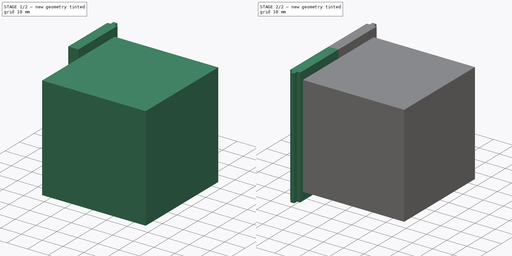
[diagram: build sequence overview — one tinted view per stage of 2, left to right]
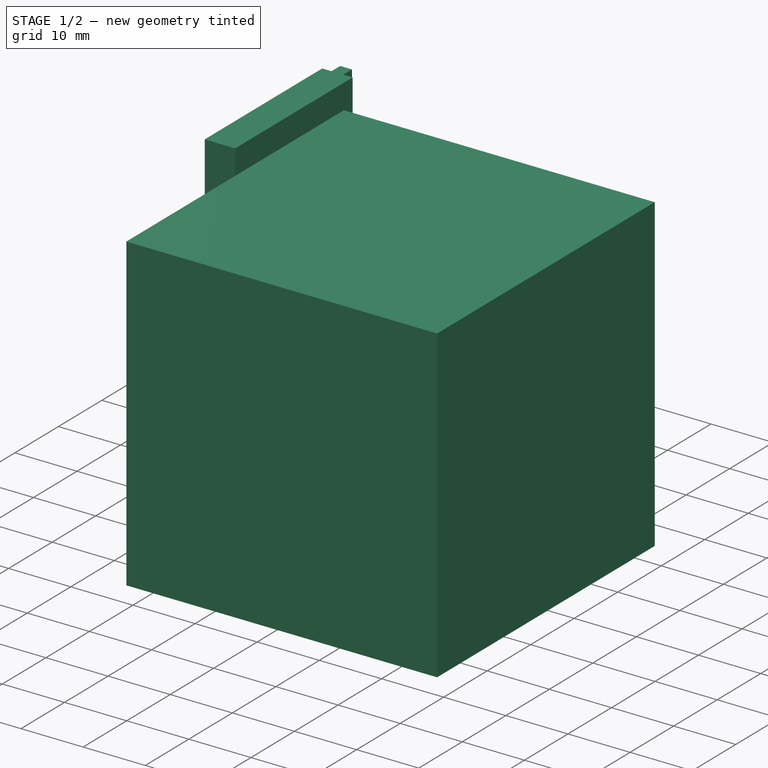
[diagram: stage 1 of 2 — iso view after this stage's code; geometry added in this stage tinted green]
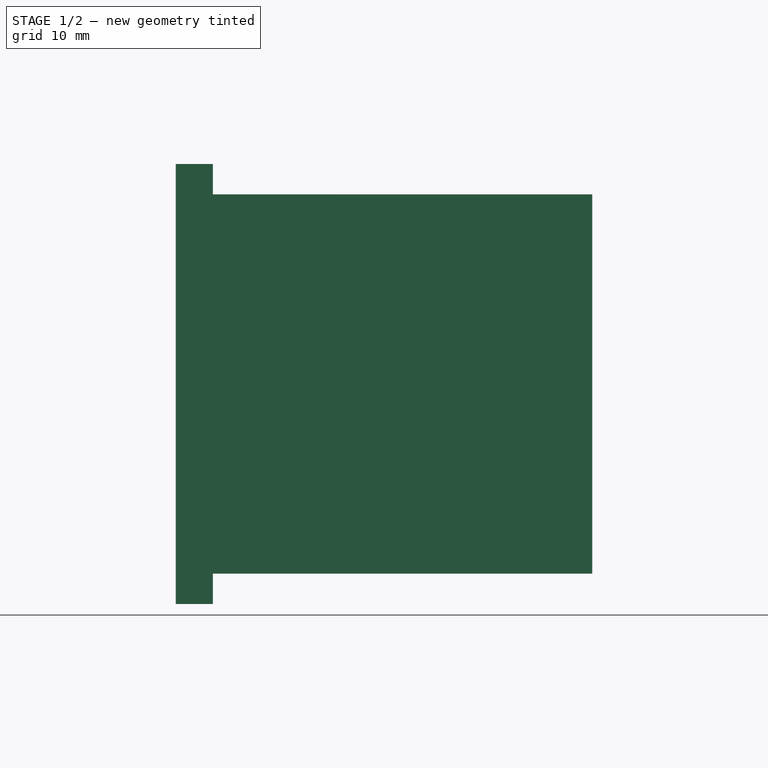
[diagram: stage 1 of 2 — front view after this stage's code; geometry added in this stage tinted green]
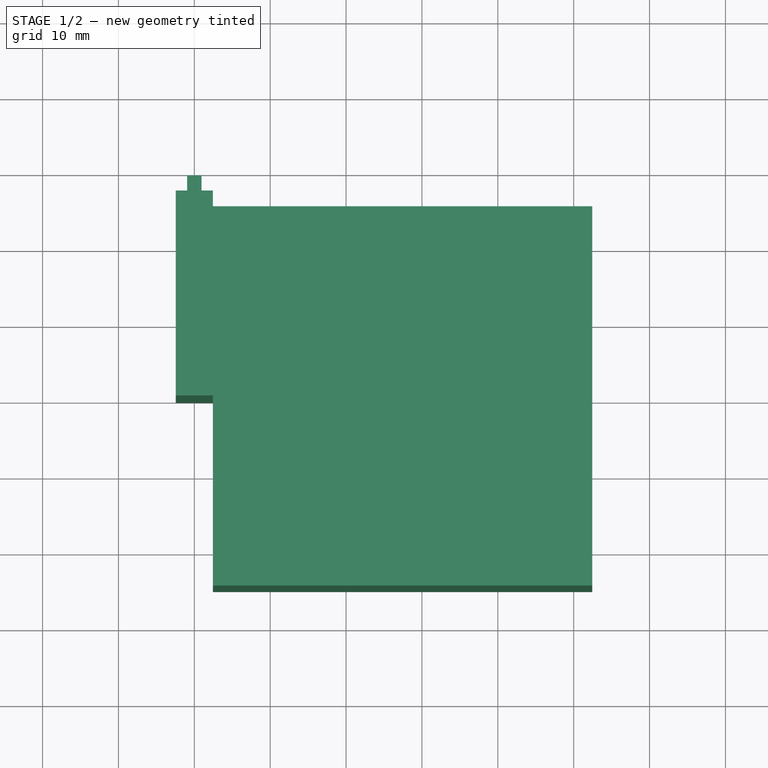
[diagram: stage 1 of 2 — top view after this stage's code; geometry added in this stage tinted green]
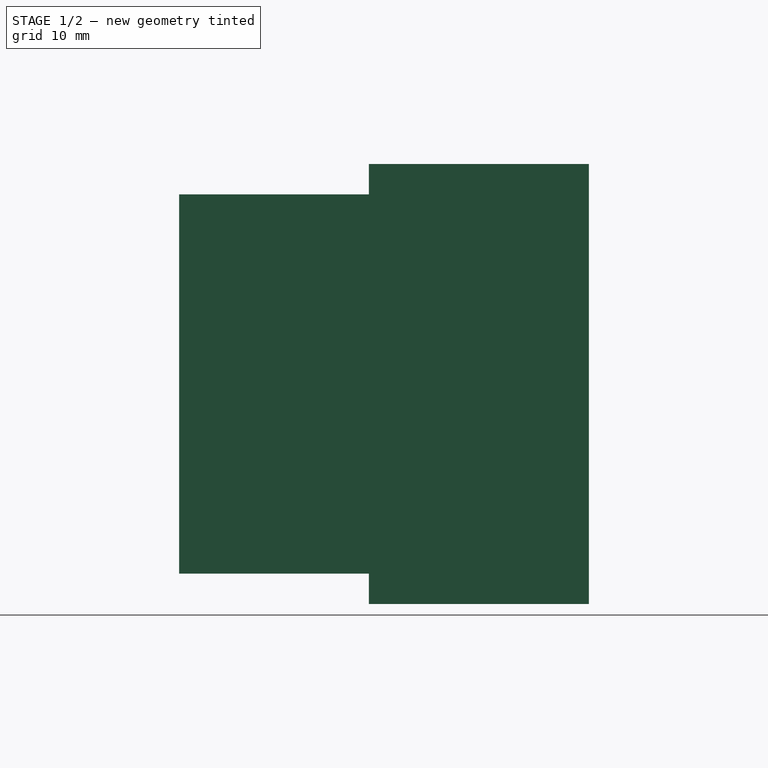
[diagram: stage 1 of 2 — right view after this stage's code; geometry added in this stage tinted green]
FCSTD DOCUMENT  (FreeCAD 0.22R35966 (Git))
Label: pocketqube
License: All rights reserved
LicenseURL: http://en.wikipedia.org/wiki/All_rights_reserved
objects: Sketcher::SketchObject×1, PartDesign::Pad×1, PartDesign::Mirrored×1, PartDesign::Body×1, Part::Box×1, Part::MultiFuse×1, App::Part×1
note: 7 computed .brp shape members not serialized (recipe doc carries the construction recipe); baked Part::Feature solids carry a one-line shape summary decoded from their .brp

FEATURE [Sketcher::SketchObject] Sketch
  FullyConstrained = true
  MapMode = 5
  Support = -> [XY_Plane]
  sketch-geometry (8):
    g0: LineSegment StartX=-2.45 StartY=27 StartZ=0 EndX=-0.95 EndY=27 EndZ=0
    g1: LineSegment StartX=-0.95 StartY=27 StartZ=0 EndX=-0.95 EndY=29 EndZ=0
    g2: LineSegment StartX=-0.95 StartY=29 StartZ=0 EndX=0.95 EndY=29 EndZ=0
    g3: LineSegment StartX=0.95 StartY=29 StartZ=0 EndX=0.95 EndY=27 EndZ=0
    g4: LineSegment StartX=0.95 StartY=27 StartZ=0 EndX=2.45 EndY=27 EndZ=0
    g5: LineSegment StartX=2.45 StartY=27 StartZ=0 EndX=2.45 EndY=0 EndZ=0
    g6: LineSegment StartX=-2.45 StartY=27 StartZ=0 EndX=-2.45 EndY=0 EndZ=0
    g7: LineSegment StartX=-2.45 StartY=0 StartZ=0 EndX=2.45 EndY=0 EndZ=0
  constraints (23):
    c: Horizontal(g0)
    c: Coincident(g0,g1)
    c: Vertical(g1)
    c: Coincident(g1,g2)
    c: Coincident(g2,g3)
    c: Vertical(g3)
    c: Coincident(g3,g4)
    c: Horizontal(g4)
    c: Equal(g1,g3)
    c: Distance(g2,g2) = 1.9
    c: Equal(g0,g4)
    c: Symmetric(g1,g2,g-2)
    c: Distance(g1,g1) = 2
    c: DistanceX(g4,g4) = 1.5
    c: Coincident(g5,g4)
    c: Vertical(g5)
    c: PointOnObject(g5,g-1)
    c: DistanceY(g5,g5) = 27
    c: Coincident(g6,g0)
    c: PointOnObject(g6,g-1)
    c: Vertical(g6)
    c: Coincident(g7,g6)
    c: Coincident(g7,g5)
FEATURE [PartDesign::Pad] Pad
  Direction = (0,0,1)
  Length = 58
  Length2 = 10
  Midplane = true
  Profile = -> Sketch
  ReferenceAxis = -> Sketch [N_Axis]
  Suppressed = false
  Type = 0
FEATURE [PartDesign::Body] Body
  Group = -> [Sketch,Pad,Mirrored]
  Origin = -> Origin
  Tip = -> Mirrored
FEATURE [Part::Box] Box  label="Cube"
  AttacherType = Attacher::AttachEngine3D
  Height = 50
  Length = 50
  Placement = pos=(2.45,-25,-25) rot=(0,0,1;0rad)
  Width = 50
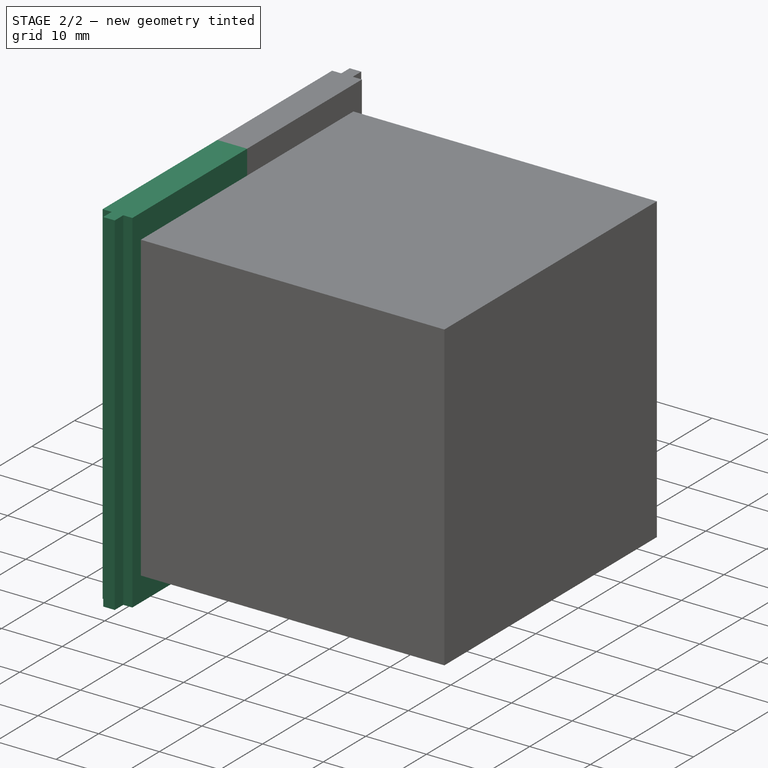
[diagram: stage 2 of 2 — iso view after this stage's code; geometry added in this stage tinted green]
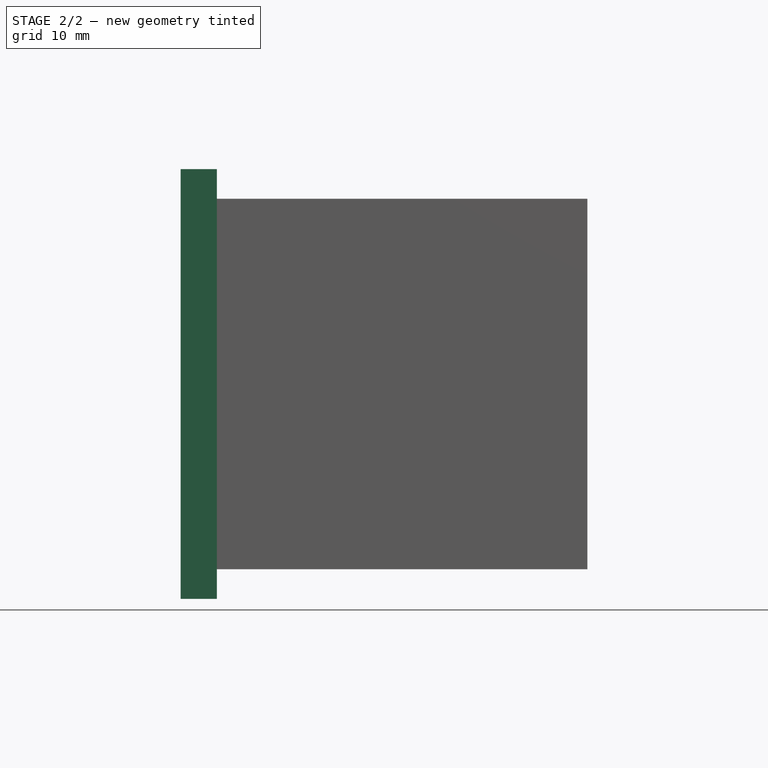
[diagram: stage 2 of 2 — front view after this stage's code; geometry added in this stage tinted green]
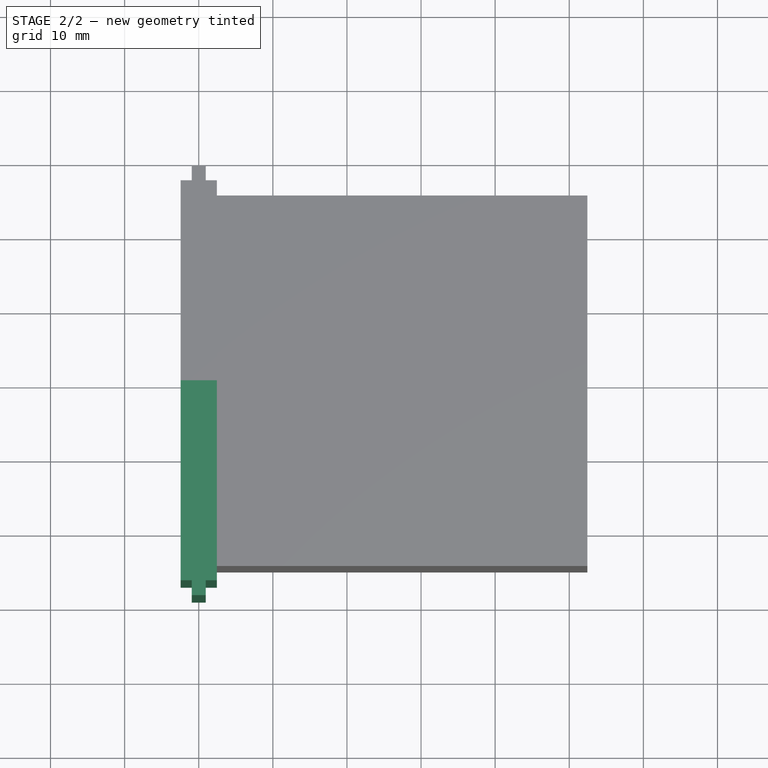
[diagram: stage 2 of 2 — top view after this stage's code; geometry added in this stage tinted green]
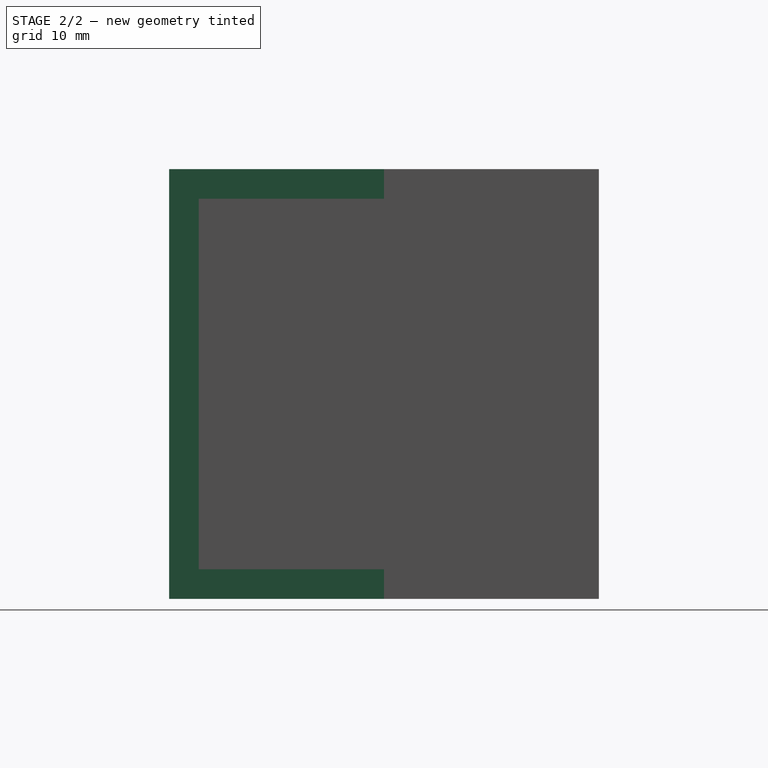
[diagram: stage 2 of 2 — right view after this stage's code; geometry added in this stage tinted green]
FEATURE [PartDesign::Mirrored] Mirrored
  BaseFeature = -> Pad
  MirrorPlane = -> XZ_Plane
  Originals = -> [Pad]
  Suppressed = false
FEATURE [Part::MultiFuse] Fusion
  Shapes = -> [Body,Box]
FEATURE [App::Part] Part  label="Satellite"
  Group = -> [Box,Body,Fusion]
  Origin = -> Origin001
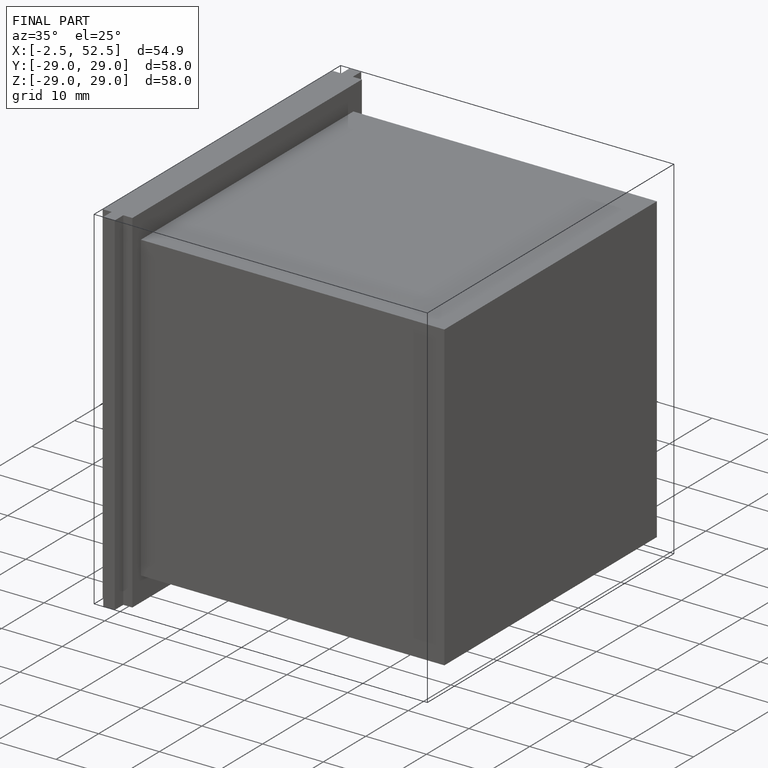
[diagram: finished part — iso view with bounding-box wireframe]
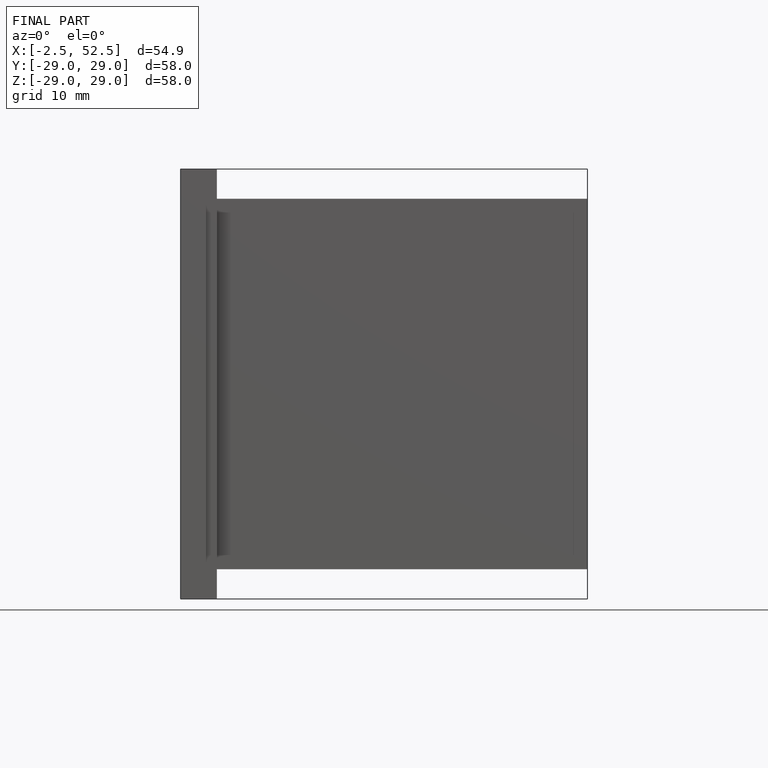
[diagram: finished part — front view with bounding-box wireframe]
